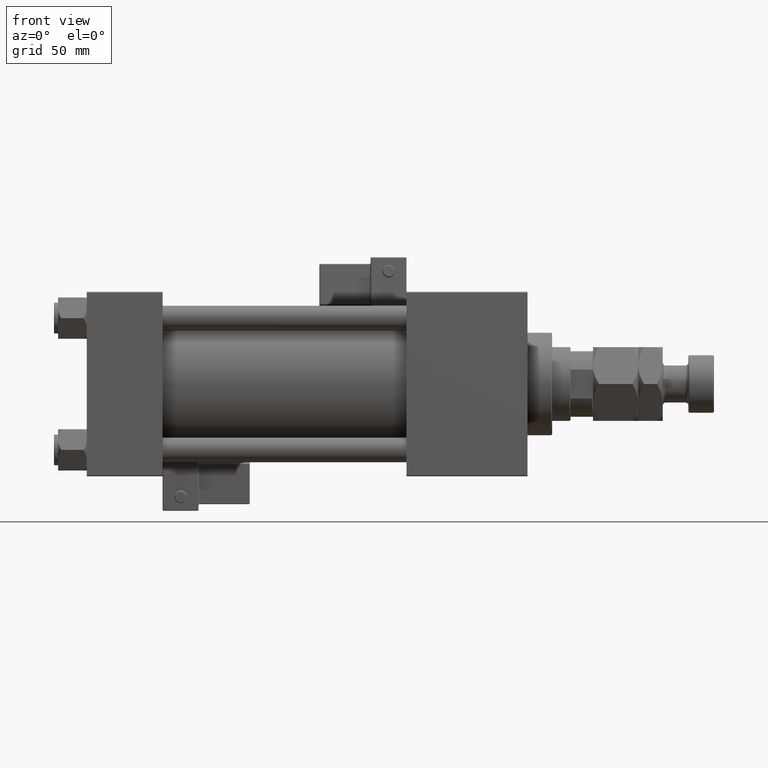
[diagram: clean part render]
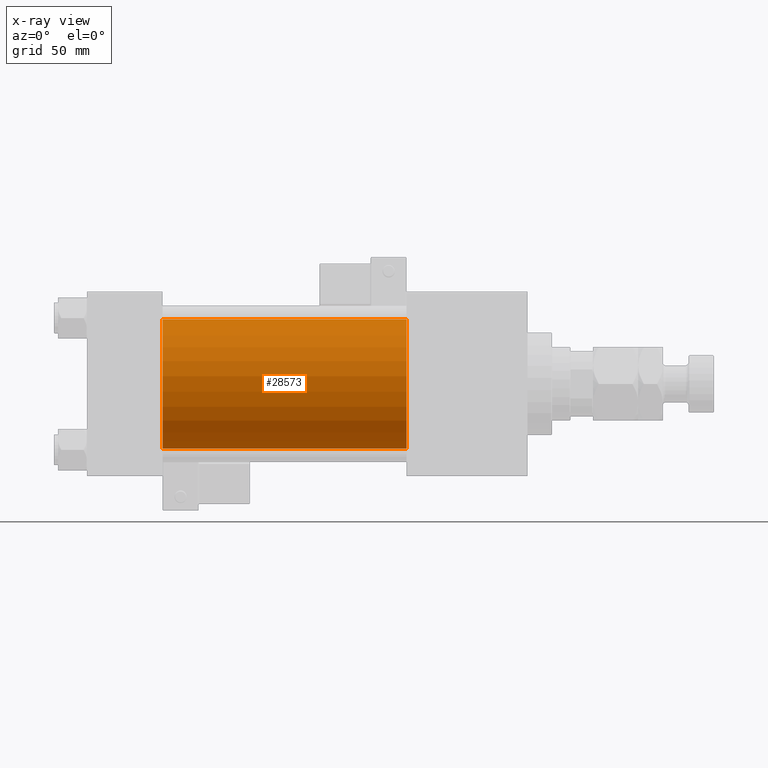
[diagram: x-ray — body ghosted, one internal face saturated and labeled with its STEP entity id]
A machine part, front view, then the same camera in x-ray: the body is ghosted and one INTERNAL B-rep face — a face not visible from any outside direction — is saturated and labeled: STEP entity #28573.
In plain terms, the highlighted cylindrical surface (partial cylindrical patch) has radius 31.5 mm, axis along (-1, -0, -0).
Its self-contained STEP definition (entity closure, byte-faithful):
#3984 = AXIS2_PLACEMENT_3D ( 'NONE', #15712, #20626, #8036 ) ;
#4189 = DIRECTION ( 'NONE',  ( 0.000000000000000000, 0.000000000000000000, 1.000000000000000000 ) ) ;
#4586 = VERTEX_POINT ( 'NONE', #37944 ) ;
#4975 = LINE ( 'NONE', #38364, #38159 ) ;
#6531 = ORIENTED_EDGE ( 'NONE', *, *, #50135, .T. ) ;
#8036 = DIRECTION ( 'NONE',  ( 0.000000000000000000, 0.000000000000000000, -1.000000000000000000 ) ) ;
#8455 = AXIS2_PLACEMENT_3D ( 'NONE', #16710, #20539, #13158 ) ;
#11804 = ORIENTED_EDGE ( 'NONE', *, *, #36315, .T. ) ;
#13158 = DIRECTION ( 'NONE',  ( 0.000000000000000000, 0.000000000000000000, -1.000000000000000000 ) ) ;
#15365 = VERTEX_POINT ( 'NONE', #23977 ) ;
#15712 = CARTESIAN_POINT ( 'NONE',  ( 37.00000000000000000, -2.602085213965210642E-15, 0.000000000000000000 ) ) ;
#16710 = CARTESIAN_POINT ( 'NONE',  ( 156.0000000000000000, -2.602085213965210642E-15, 0.000000000000000000 ) ) ;
#16770 = CARTESIAN_POINT ( 'NONE',  ( 156.0000000000000000, -2.602085213965210642E-15, 0.000000000000000000 ) ) ;
#16785 = CARTESIAN_POINT ( 'NONE',  ( 156.0000000000000000, 1.255552203348951850E-15, -31.50000000000000000 ) ) ;
#17318 = DIRECTION ( 'NONE',  ( -1.000000000000000000, -0.000000000000000000, -0.000000000000000000 ) ) ;
#17842 = EDGE_LOOP ( 'NONE', ( #11804, #6531, #25723, #38777 ) ) ;
#20539 = DIRECTION ( 'NONE',  ( 1.000000000000000000, 0.000000000000000000, 0.000000000000000000 ) ) ;
#20626 = DIRECTION ( 'NONE',  ( 1.000000000000000000, 0.000000000000000000, 0.000000000000000000 ) ) ;
#20871 = CARTESIAN_POINT ( 'NONE',  ( 156.0000000000000000, -2.602085213965210642E-15, 31.50000000000000000 ) ) ;
#22797 = VERTEX_POINT ( 'NONE', #42945 ) ;
#23977 = CARTESIAN_POINT ( 'NONE',  ( 37.00000000000000000, -2.602085213965210642E-15, 31.50000000000000000 ) ) ;
#24666 = VECTOR ( 'NONE', #46311, 1000.000000000000000 ) ;
#24947 = CIRCLE ( 'NONE', #3984, 31.50000000000000000 ) ;
#24966 = FACE_OUTER_BOUND ( 'NONE', #17842, .T. ) ;
#25723 = ORIENTED_EDGE ( 'NONE', *, *, #33959, .F. ) ;
#27842 = EDGE_CURVE ( 'NONE', #4586, #15365, #29057, .T. ) ;
#28573 = ADVANCED_FACE ( 'NONE', ( #24966 ), #41683, .F. ) ;
#29057 = LINE ( 'NONE', #20871, #24666 ) ;
#33959 = EDGE_CURVE ( 'NONE', #15365, #22797, #24947, .T. ) ;
#36315 = EDGE_CURVE ( 'NONE', #4586, #40853, #46019, .T. ) ;
#37944 = CARTESIAN_POINT ( 'NONE',  ( 156.0000000000000000, -2.602085213965210642E-15, 31.50000000000000000 ) ) ;
#38159 = VECTOR ( 'NONE', #41659, 1000.000000000000000 ) ;
#38364 = CARTESIAN_POINT ( 'NONE',  ( 156.0000000000000000, 1.255552203348951850E-15, -31.50000000000000000 ) ) ;
#38777 = ORIENTED_EDGE ( 'NONE', *, *, #27842, .F. ) ;
#40853 = VERTEX_POINT ( 'NONE', #16785 ) ;
#41659 = DIRECTION ( 'NONE',  ( -1.000000000000000000, -0.000000000000000000, -0.000000000000000000 ) ) ;
#41683 = CYLINDRICAL_SURFACE ( 'NONE', #53592, 31.50000000000000000 ) ;
#42945 = CARTESIAN_POINT ( 'NONE',  ( 37.00000000000000000, 1.255552203348951850E-15, -31.50000000000000000 ) ) ;
#46019 = CIRCLE ( 'NONE', #8455, 31.50000000000000000 ) ;
#46311 = DIRECTION ( 'NONE',  ( -1.000000000000000000, -0.000000000000000000, -0.000000000000000000 ) ) ;
#50135 = EDGE_CURVE ( 'NONE', #40853, #22797, #4975, .T. ) ;
#53592 = AXIS2_PLACEMENT_3D ( 'NONE', #16770, #17318, #4189 ) ;